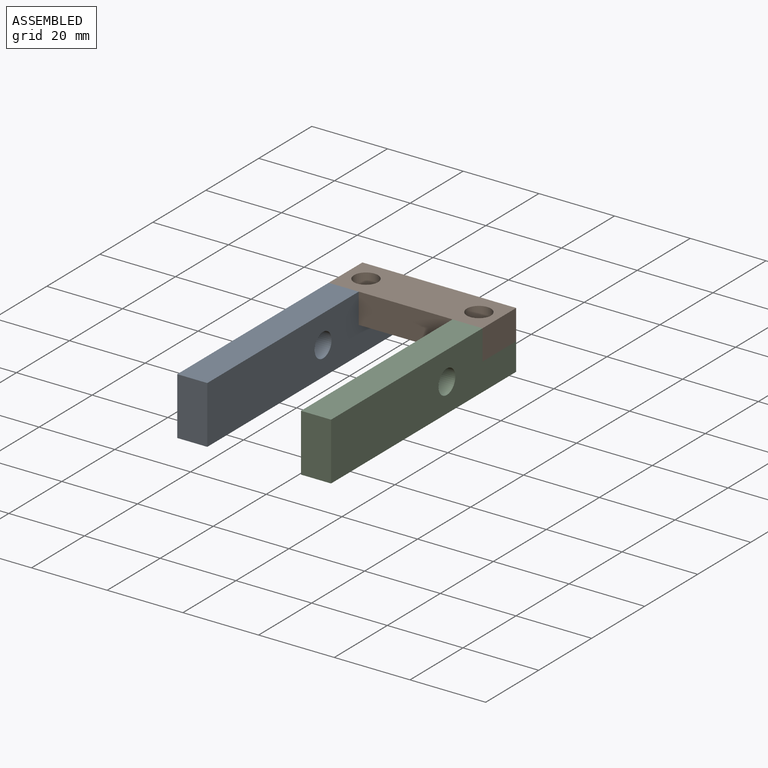
[diagram: assembled view]
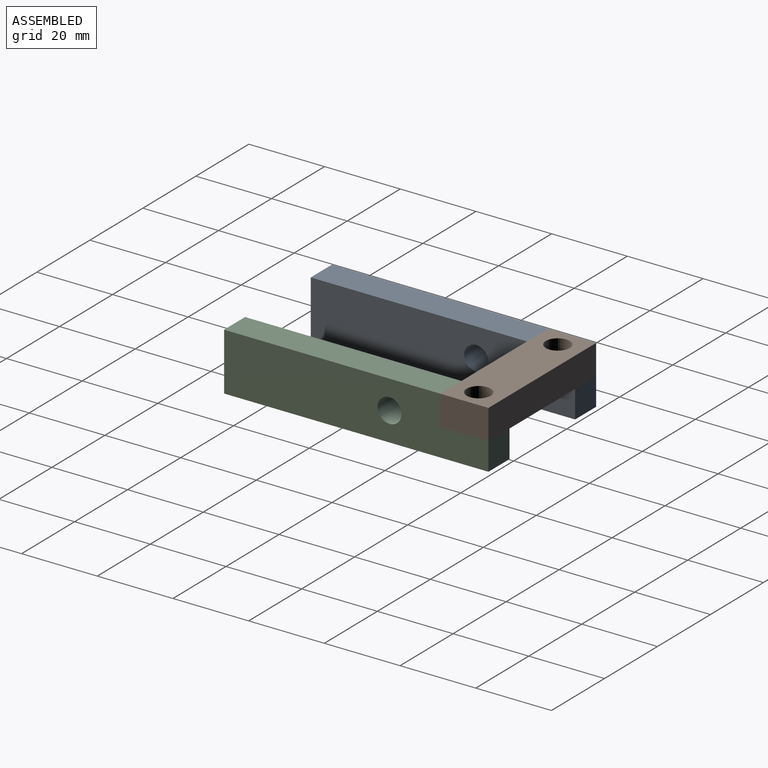
[diagram: assembled view, second angle]
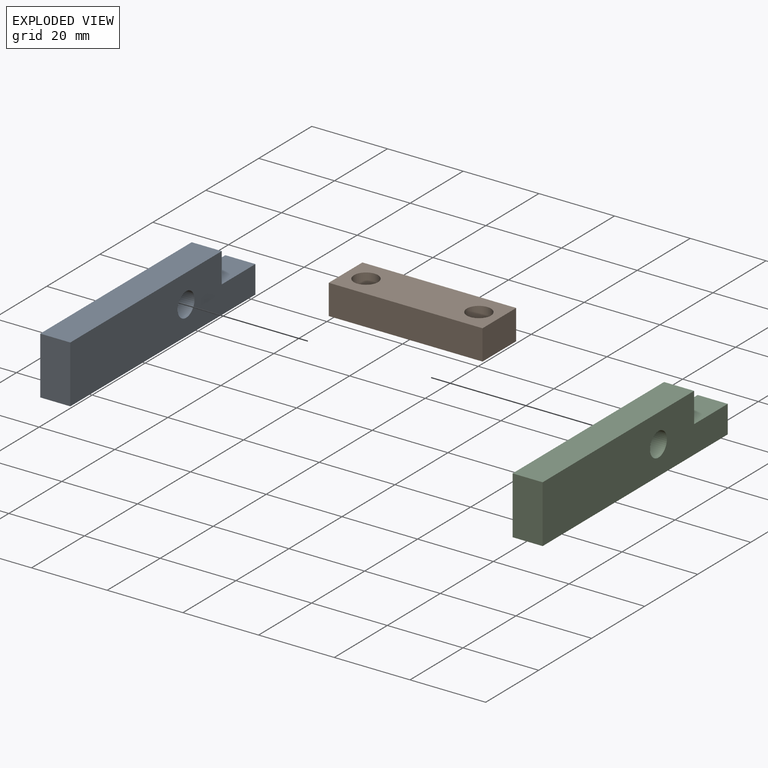
[diagram: exploded view]
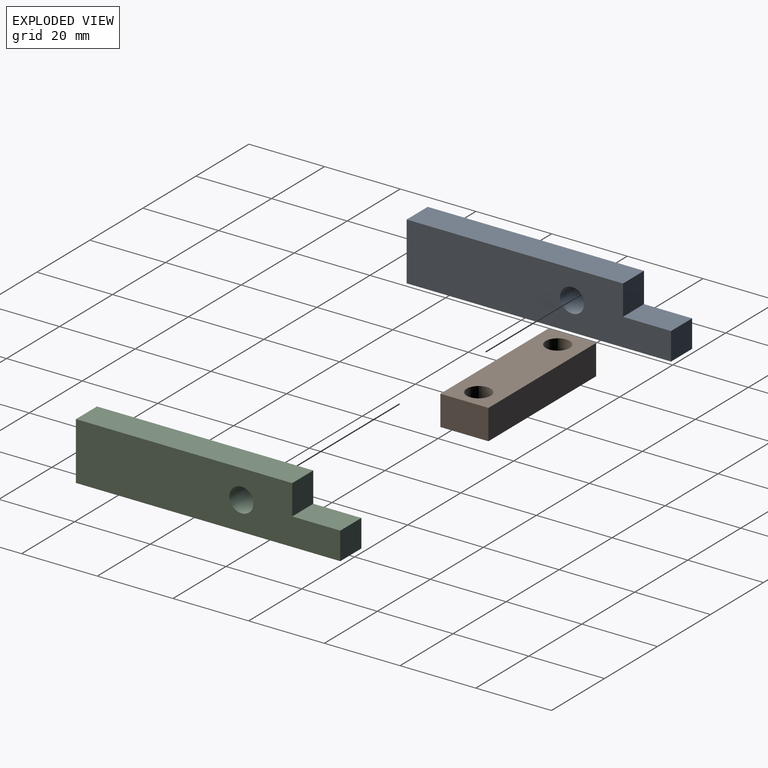
[diagram: exploded view, second angle]
ASSEMBLY  parts=3 mates=2
PART A: 9 faces, bbox 7.9x69.9x15.2 mm
  f0: plane 7.94x7.29mm, normal (0,1,0), area 57.9mm2, adj f2,f5,f6,f8
  f1: plane 15.24x7.94mm, normal (0,-1,0), area 121mm2, adj f2,f4,f5,f6
  f2: plane 69.85x7.94mm, normal (0,0,-1), area 554.4mm2, adj f0,f1,f5,f6
  f3: cylinder r=3.17mm len=7.94mm, axis (-1,0,0), area 158.3mm2, adj f5,f6
  f4: plane 57.15x7.94mm, normal (0,0,1), area 453.6mm2, adj f1,f5,f6,f7
  f5: plane 69.85x15.24mm, normal (1,0,0), area 931.9mm2, adj f0,f1,f2,f3,f4,f7,f8
  f6: plane 69.85x15.24mm, normal (-1,0,0), area 931.9mm2, adj f0,f1,f2,f3,f4,f7,f8
  f7: plane 7.95x7.94mm, normal (0,1,0), area 63.1mm2, adj f4,f5,f6,f8
  f8: plane 12.7x7.94mm, normal (0,0,1), area 100.8mm2, adj f0,f5,f6,f7
PART B: 8 faces, bbox 40.6x12.7x8 mm
  f0: plane 40.64x12.7mm, normal (0,0,1), area 452.8mm2, adj f2,f3,f4,f5,f6,f7
  f1: plane 40.64x12.7mm, normal (0,0,-1), area 452.8mm2, adj f2,f3,f4,f5,f6,f7
  f2: plane 40.64x7.95mm, normal (0,-1,0), area 323.1mm2, adj f0,f1,f4,f5
  f3: plane 40.64x7.95mm, normal (0,1,0), area 323.1mm2, adj f0,f1,f4,f5
  f4: plane 12.7x7.95mm, normal (1,0,0), area 101mm2, adj f0,f1,f2,f3
  f5: plane 12.7x7.95mm, normal (-1,0,0), area 101mm2, adj f0,f1,f2,f3
  f6: cylinder r=3.17mm len=7.95mm, axis (0,0,1), area 158.6mm2, adj f0,f1
  f7: cylinder r=3.17mm len=7.95mm, axis (0,0,1), area 158.6mm2, adj f0,f1
PART C: same geometry as A
PLACE A t=(-30.78,9.81,14.56)mm
PLACE B t=(-30.78,36.75,37.73)mm
PLACE C t=(1.92,9.81,14.56)mm
MATE fastened B.f5 <-> A.f6  axis (-1,0,0) through (-30.78,-19.76,-28.59)mm
MATE fastened B.f4 <-> C.f5  axis (1,0,0) through (9.86,-32.46,-28.59)mm
